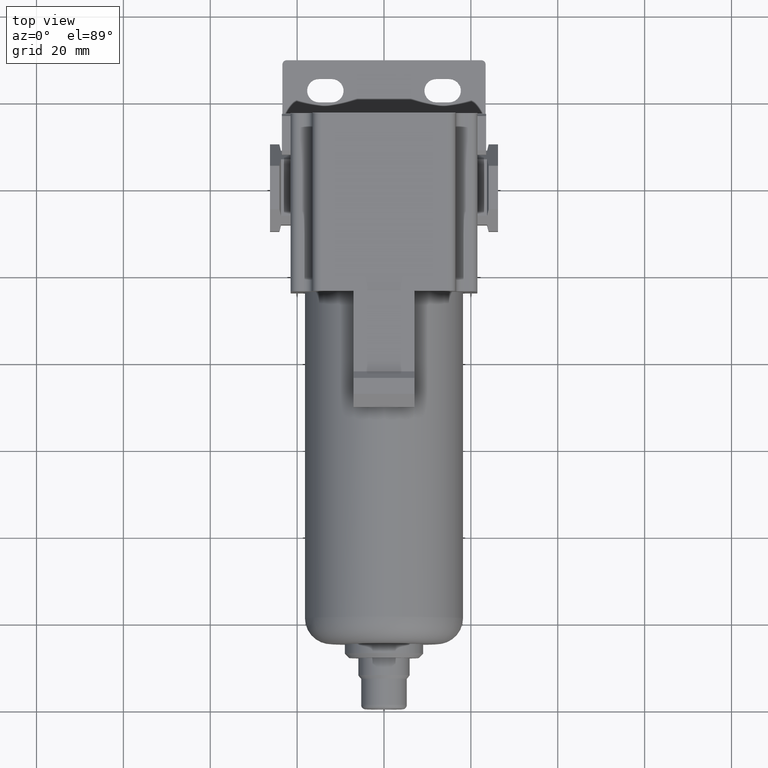
[diagram: clean part render]
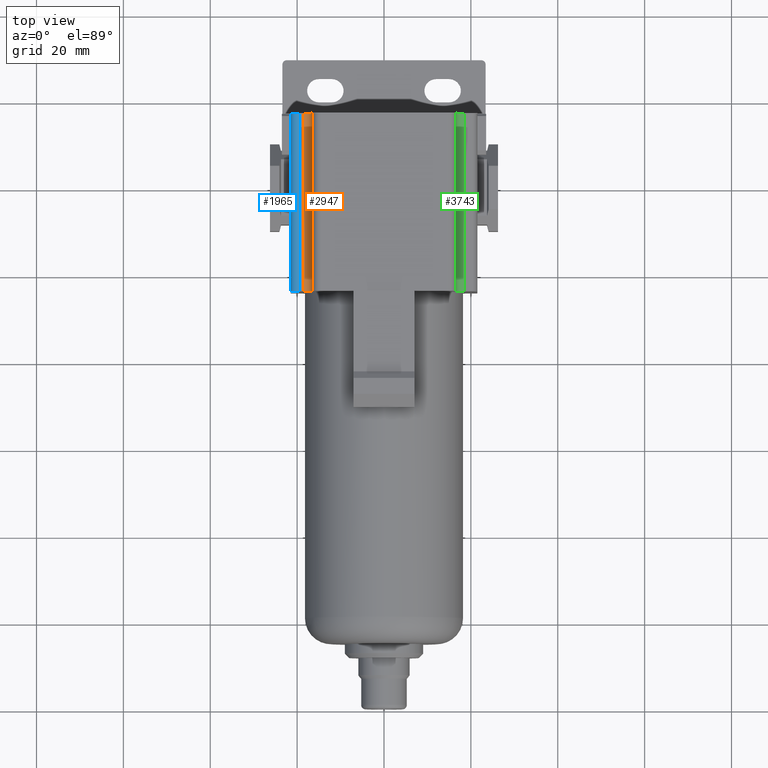
[diagram: same view with three faces highlighted in distinct colors, each labeled with its STEP entity id]
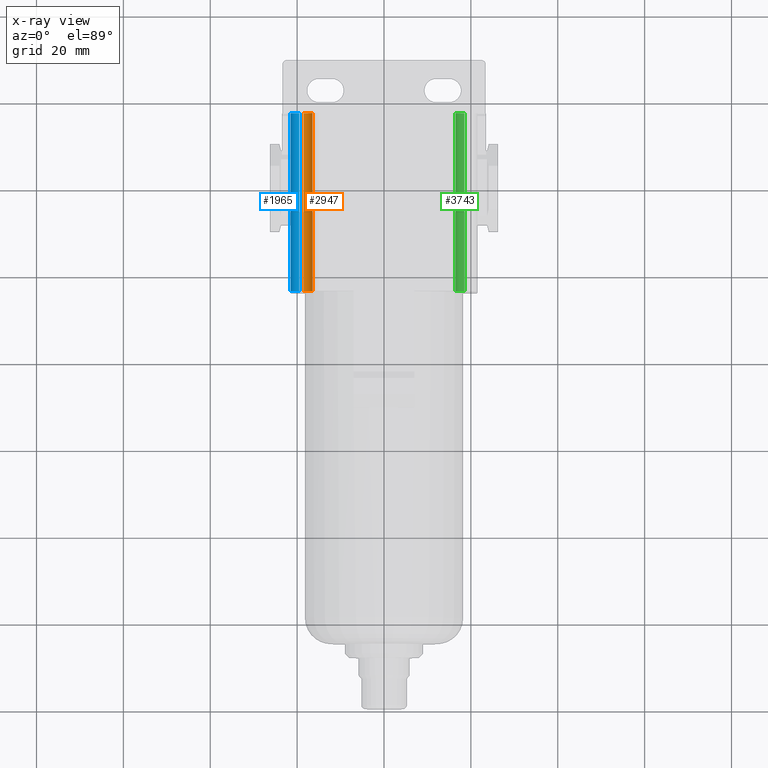
[diagram: x-ray of the same camera — body ghosted, the three highlighted faces saturated]
A machine part, top view with three faces highlighted in distinct colors.
The next image is the same camera in x-ray (body ghosted, the three faces saturated) — at least one of them is partly hidden behind the body in this view.
Their STEP definitions:

[orange] entity #2947 — the highlighted cylindrical surface (edge-blend (fillet) strip) has radius 2 mm, axis along (0, 1, 0).
#56 = CARTESIAN_POINT ( 'NONE',  ( -16.50000000000000000, 17.00000000000000000, 17.00000000000000000 ) ) ;
#142 = CIRCLE ( 'NONE', #3625, 1.999999999999998224 ) ;
#259 = LINE ( 'NONE', #1577, #4268 ) ;
#447 = CARTESIAN_POINT ( 'NONE',  ( -16.50000000000000000, -24.00000000000000000, 17.00000000000000000 ) ) ;
#605 = EDGE_CURVE ( 'NONE', #1033, #2554, #983, .T. ) ;
#630 = AXIS2_PLACEMENT_3D ( 'NONE', #1175, #1221, #2227 ) ;
#705 = ORIENTED_EDGE ( 'NONE', *, *, #4118, .T. ) ;
#791 = CARTESIAN_POINT ( 'NONE',  ( -18.50000000000029843, 17.00000000000000000, 17.00000000000029843 ) ) ;
#983 = LINE ( 'NONE', #2303, #3949 ) ;
#1033 = VERTEX_POINT ( 'NONE', #56 ) ;
#1059 = AXIS2_PLACEMENT_3D ( 'NONE', #791, #1759, #3425 ) ;
#1175 = CARTESIAN_POINT ( 'NONE',  ( -18.50000000000029843, 17.00000000000000000, 17.00000000000029843 ) ) ;
#1198 = DIRECTION ( 'NONE',  ( -0.0000000000000000000, 1.000000000000000000, 0.0000000000000000000 ) ) ;
#1221 = DIRECTION ( 'NONE',  ( -0.0000000000000000000, 1.000000000000000000, 0.0000000000000000000 ) ) ;
#1401 = VERTEX_POINT ( 'NONE', #3994 ) ;
#1469 = CYLINDRICAL_SURFACE ( 'NONE', #1059, 1.999999999999997780 ) ;
#1577 = CARTESIAN_POINT ( 'NONE',  ( -18.50000000000000000, 17.00000000000000000, 15.00000000000000000 ) ) ;
#1759 = DIRECTION ( 'NONE',  ( 0.0000000000000000000, 1.000000000000000000, 0.0000000000000000000 ) ) ;
#1818 = VERTEX_POINT ( 'NONE', #1855 ) ;
#1841 = ORIENTED_EDGE ( 'NONE', *, *, #2720, .T. ) ;
#1855 = CARTESIAN_POINT ( 'NONE',  ( -18.50000000000000000, 17.00000000000000000, 15.00000000000000000 ) ) ;
#1870 = CARTESIAN_POINT ( 'NONE',  ( -18.50000000000029843, -24.00000000000000000, 17.00000000000029843 ) ) ;
#1956 = CIRCLE ( 'NONE', #630, 1.999999999999998224 ) ;
#2227 = DIRECTION ( 'NONE',  ( 1.000000000000000000, 0.0000000000000000000, 0.0000000000000000000 ) ) ;
#2303 = CARTESIAN_POINT ( 'NONE',  ( -16.50000000000000000, 17.00000000000000000, 17.00000000000000000 ) ) ;
#2318 = ORIENTED_EDGE ( 'NONE', *, *, #605, .F. ) ;
#2554 = VERTEX_POINT ( 'NONE', #447 ) ;
#2676 = EDGE_CURVE ( 'NONE', #2554, #1401, #142, .T. ) ;
#2720 = EDGE_CURVE ( 'NONE', #1033, #1818, #1956, .T. ) ;
#2947 = ADVANCED_FACE ( 'NONE', ( #3440 ), #1469, .F. ) ;
#2988 = EDGE_LOOP ( 'NONE', ( #705, #3426, #2318, #1841 ) ) ;
#3253 = DIRECTION ( 'NONE',  ( 1.000000000000000000, 0.0000000000000000000, 0.0000000000000000000 ) ) ;
#3425 = DIRECTION ( 'NONE',  ( -0.7071067811865475727, 0.0000000000000000000, 0.7071067811865475727 ) ) ;
#3426 = ORIENTED_EDGE ( 'NONE', *, *, #2676, .F. ) ;
#3440 = FACE_OUTER_BOUND ( 'NONE', #2988, .T. ) ;
#3625 = AXIS2_PLACEMENT_3D ( 'NONE', #1870, #1198, #3253 ) ;
#3638 = DIRECTION ( 'NONE',  ( -0.0000000000000000000, -1.000000000000000000, -0.0000000000000000000 ) ) ;
#3949 = VECTOR ( 'NONE', #3638, 1000.000000000000000 ) ;
#3994 = CARTESIAN_POINT ( 'NONE',  ( -18.50000000000000000, -24.00000000000000000, 15.00000000000000000 ) ) ;
#4118 = EDGE_CURVE ( 'NONE', #1818, #1401, #259, .T. ) ;
#4232 = DIRECTION ( 'NONE',  ( -0.0000000000000000000, -1.000000000000000000, -0.0000000000000000000 ) ) ;
#4268 = VECTOR ( 'NONE', #4232, 1000.000000000000000 ) ;

[blue] entity #1965 — the highlighted cylindrical surface (edge-blend (fillet) strip) has radius 2 mm, axis along (0, 1, 0).
#16 = EDGE_CURVE ( 'NONE', #998, #1670, #1940, .T. ) ;
#74 = AXIS2_PLACEMENT_3D ( 'NONE', #3522, #3368, #407 ) ;
#155 = ORIENTED_EDGE ( 'NONE', *, *, #897, .F. ) ;
#188 = DIRECTION ( 'NONE',  ( 1.000000000000000000, 0.0000000000000000000, 0.0000000000000000000 ) ) ;
#247 = CARTESIAN_POINT ( 'NONE',  ( -19.50000000000000000, -24.00000000000000000, 15.00000000000000000 ) ) ;
#290 = VECTOR ( 'NONE', #2031, 1000.000000000000000 ) ;
#339 = VERTEX_POINT ( 'NONE', #2462 ) ;
#405 = CARTESIAN_POINT ( 'NONE',  ( -21.50000000000000000, 17.00000000000000000, 13.00000000000000000 ) ) ;
#407 = DIRECTION ( 'NONE',  ( 0.7071067811865471286, 0.0000000000000000000, -0.7071067811865479058 ) ) ;
#413 = CARTESIAN_POINT ( 'NONE',  ( -19.50000000000000000, 17.00000000000000000, 15.00000000000000000 ) ) ;
#438 = ORIENTED_EDGE ( 'NONE', *, *, #2302, .T. ) ;
#502 = ORIENTED_EDGE ( 'NONE', *, *, #1488, .T. ) ;
#557 = LINE ( 'NONE', #1589, #981 ) ;
#571 = DIRECTION ( 'NONE',  ( -0.0000000000000000000, 1.000000000000000000, 0.0000000000000000000 ) ) ;
#661 = VERTEX_POINT ( 'NONE', #670 ) ;
#664 = VERTEX_POINT ( 'NONE', #1360 ) ;
#670 = CARTESIAN_POINT ( 'NONE',  ( -19.50000000000000000, 17.00000000000000000, 15.00000000000000000 ) ) ;
#821 = LINE ( 'NONE', #413, #290 ) ;
#897 = EDGE_CURVE ( 'NONE', #664, #661, #3031, .T. ) ;
#981 = VECTOR ( 'NONE', #3171, 1000.000000000000000 ) ;
#998 = VERTEX_POINT ( 'NONE', #1062 ) ;
#1030 = DIRECTION ( 'NONE',  ( 0.0000000000000000000, -1.000000000000000000, 0.0000000000000000000 ) ) ;
#1062 = CARTESIAN_POINT ( 'NONE',  ( -21.50000000000000000, -24.00000000000000000, 13.00000000000000000 ) ) ;
#1116 = ORIENTED_EDGE ( 'NONE', *, *, #2604, .T. ) ;
#1360 = CARTESIAN_POINT ( 'NONE',  ( -21.50000000000000000, 17.00000000000000000, 13.00000000000000000 ) ) ;
#1488 = EDGE_CURVE ( 'NONE', #2807, #339, #4297, .T. ) ;
#1527 = AXIS2_PLACEMENT_3D ( 'NONE', #4278, #571, #2901 ) ;
#1589 = CARTESIAN_POINT ( 'NONE',  ( -21.50000000000000000, 17.00000000000000000, 13.00000000000000000 ) ) ;
#1617 = ORIENTED_EDGE ( 'NONE', *, *, #3414, .F. ) ;
#1628 = CARTESIAN_POINT ( 'NONE',  ( -21.50000000000000000, 16.39999999999999858, 13.00000000000000000 ) ) ;
#1670 = VERTEX_POINT ( 'NONE', #247 ) ;
#1721 = AXIS2_PLACEMENT_3D ( 'NONE', #2890, #3834, #188 ) ;
#1940 = CIRCLE ( 'NONE', #1527, 1.999999999999998224 ) ;
#1965 = ADVANCED_FACE ( 'NONE', ( #2607 ), #3940, .T. ) ;
#2031 = DIRECTION ( 'NONE',  ( -0.0000000000000000000, -1.000000000000000000, -0.0000000000000000000 ) ) ;
#2034 = CARTESIAN_POINT ( 'NONE',  ( -21.50000000000000000, 16.39999999999999858, 13.00000000000000000 ) ) ;
#2145 = LINE ( 'NONE', #405, #3976 ) ;
#2302 = EDGE_CURVE ( 'NONE', #339, #998, #557, .T. ) ;
#2408 = ORIENTED_EDGE ( 'NONE', *, *, #16, .T. ) ;
#2462 = CARTESIAN_POINT ( 'NONE',  ( -21.50000000000000000, 8.500000000000000000, 13.00000000000000000 ) ) ;
#2481 = VECTOR ( 'NONE', #1030, 1000.000000000000000 ) ;
#2604 = EDGE_CURVE ( 'NONE', #664, #2807, #2145, .T. ) ;
#2607 = FACE_OUTER_BOUND ( 'NONE', #3954, .T. ) ;
#2807 = VERTEX_POINT ( 'NONE', #1628 ) ;
#2890 = CARTESIAN_POINT ( 'NONE',  ( -19.49999999999970157, 17.00000000000000000, 12.99999999999969980 ) ) ;
#2901 = DIRECTION ( 'NONE',  ( 1.000000000000000000, 0.0000000000000000000, 0.0000000000000000000 ) ) ;
#3031 = CIRCLE ( 'NONE', #1721, 1.999999999999998224 ) ;
#3171 = DIRECTION ( 'NONE',  ( -0.0000000000000000000, -1.000000000000000000, -0.0000000000000000000 ) ) ;
#3368 = DIRECTION ( 'NONE',  ( 0.0000000000000000000, 1.000000000000000000, 0.0000000000000000000 ) ) ;
#3414 = EDGE_CURVE ( 'NONE', #661, #1670, #821, .T. ) ;
#3467 = DIRECTION ( 'NONE',  ( -0.0000000000000000000, -1.000000000000000000, -0.0000000000000000000 ) ) ;
#3522 = CARTESIAN_POINT ( 'NONE',  ( -19.49999999999970157, 17.00000000000000000, 12.99999999999969980 ) ) ;
#3834 = DIRECTION ( 'NONE',  ( -0.0000000000000000000, 1.000000000000000000, 0.0000000000000000000 ) ) ;
#3940 = CYLINDRICAL_SURFACE ( 'NONE', #74, 1.999999999999999112 ) ;
#3954 = EDGE_LOOP ( 'NONE', ( #2408, #1617, #155, #1116, #502, #438 ) ) ;
#3976 = VECTOR ( 'NONE', #3467, 1000.000000000000000 ) ;
#4278 = CARTESIAN_POINT ( 'NONE',  ( -19.49999999999970157, -24.00000000000000000, 12.99999999999969980 ) ) ;
#4297 = LINE ( 'NONE', #2034, #2481 ) ;

[green] entity #3743 — the highlighted cylindrical surface (edge-blend (fillet) strip) has radius 2 mm, axis along (0, 1, 0).
#82 = VERTEX_POINT ( 'NONE', #1924 ) ;
#126 = AXIS2_PLACEMENT_3D ( 'NONE', #3355, #4014, #2287 ) ;
#233 = EDGE_CURVE ( 'NONE', #2480, #82, #2282, .T. ) ;
#266 = DIRECTION ( 'NONE',  ( 0.0000000000000000000, 1.000000000000000000, 0.0000000000000000000 ) ) ;
#310 = FACE_OUTER_BOUND ( 'NONE', #1991, .T. ) ;
#490 = EDGE_CURVE ( 'NONE', #681, #2480, #586, .T. ) ;
#586 = LINE ( 'NONE', #1878, #2760 ) ;
#681 = VERTEX_POINT ( 'NONE', #3326 ) ;
#765 = AXIS2_PLACEMENT_3D ( 'NONE', #2242, #3552, #2853 ) ;
#932 = CARTESIAN_POINT ( 'NONE',  ( 16.50000000000000000, 17.00000000000000000, 17.00000000000000000 ) ) ;
#977 = CIRCLE ( 'NONE', #765, 1.999999999999998224 ) ;
#1278 = AXIS2_PLACEMENT_3D ( 'NONE', #2268, #266, #1644 ) ;
#1616 = VECTOR ( 'NONE', #3173, 1000.000000000000000 ) ;
#1627 = CYLINDRICAL_SURFACE ( 'NONE', #1278, 2.000000000000000000 ) ;
#1643 = ORIENTED_EDGE ( 'NONE', *, *, #4181, .T. ) ;
#1644 = DIRECTION ( 'NONE',  ( 0.7071067811864947261, 0.0000000000000000000, 0.7071067811866005304 ) ) ;
#1832 = CARTESIAN_POINT ( 'NONE',  ( 16.50000000000000000, 17.00000000000000000, 17.00000000000000000 ) ) ;
#1878 = CARTESIAN_POINT ( 'NONE',  ( 18.50000000000000000, 17.00000000000000000, 15.00000000000000000 ) ) ;
#1924 = CARTESIAN_POINT ( 'NONE',  ( 16.50000000000000000, -24.00000000000000000, 17.00000000000000000 ) ) ;
#1991 = EDGE_LOOP ( 'NONE', ( #4127, #3862, #2281, #1643 ) ) ;
#2216 = DIRECTION ( 'NONE',  ( -0.0000000000000000000, -1.000000000000000000, -0.0000000000000000000 ) ) ;
#2242 = CARTESIAN_POINT ( 'NONE',  ( 18.50000000000029843, 17.00000000000000000, 17.00000000000029843 ) ) ;
#2268 = CARTESIAN_POINT ( 'NONE',  ( 18.50000000000029843, 17.00000000000000000, 17.00000000000029843 ) ) ;
#2281 = ORIENTED_EDGE ( 'NONE', *, *, #490, .F. ) ;
#2282 = CIRCLE ( 'NONE', #126, 1.999999999999998224 ) ;
#2287 = DIRECTION ( 'NONE',  ( 1.000000000000000000, 0.0000000000000000000, 0.0000000000000000000 ) ) ;
#2319 = CARTESIAN_POINT ( 'NONE',  ( 18.50000000000000000, -24.00000000000000000, 15.00000000000000000 ) ) ;
#2480 = VERTEX_POINT ( 'NONE', #2319 ) ;
#2718 = LINE ( 'NONE', #1832, #1616 ) ;
#2760 = VECTOR ( 'NONE', #2216, 1000.000000000000000 ) ;
#2853 = DIRECTION ( 'NONE',  ( 1.000000000000000000, 0.0000000000000000000, 0.0000000000000000000 ) ) ;
#3173 = DIRECTION ( 'NONE',  ( -0.0000000000000000000, -1.000000000000000000, -0.0000000000000000000 ) ) ;
#3326 = CARTESIAN_POINT ( 'NONE',  ( 18.50000000000000000, 17.00000000000000000, 15.00000000000000000 ) ) ;
#3355 = CARTESIAN_POINT ( 'NONE',  ( 18.50000000000029843, -24.00000000000000000, 17.00000000000029843 ) ) ;
#3363 = EDGE_CURVE ( 'NONE', #3769, #82, #2718, .T. ) ;
#3552 = DIRECTION ( 'NONE',  ( -0.0000000000000000000, 1.000000000000000000, 0.0000000000000000000 ) ) ;
#3743 = ADVANCED_FACE ( 'NONE', ( #310 ), #1627, .F. ) ;
#3769 = VERTEX_POINT ( 'NONE', #932 ) ;
#3862 = ORIENTED_EDGE ( 'NONE', *, *, #233, .F. ) ;
#4014 = DIRECTION ( 'NONE',  ( -0.0000000000000000000, 1.000000000000000000, 0.0000000000000000000 ) ) ;
#4127 = ORIENTED_EDGE ( 'NONE', *, *, #3363, .T. ) ;
#4181 = EDGE_CURVE ( 'NONE', #681, #3769, #977, .T. ) ;